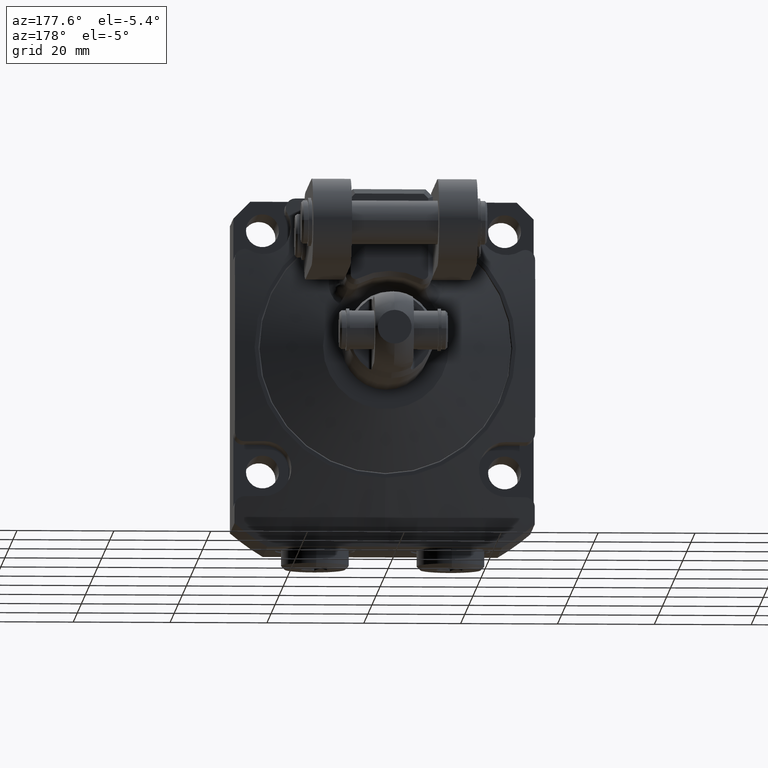
[diagram: clean part render]
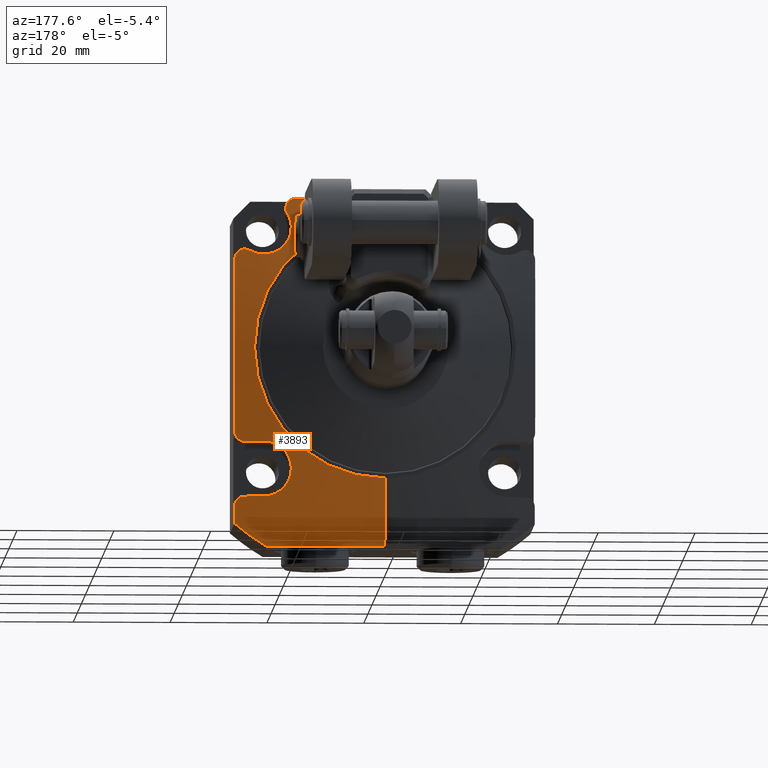
[diagram: same view with one face highlighted and labeled with its STEP entity id]
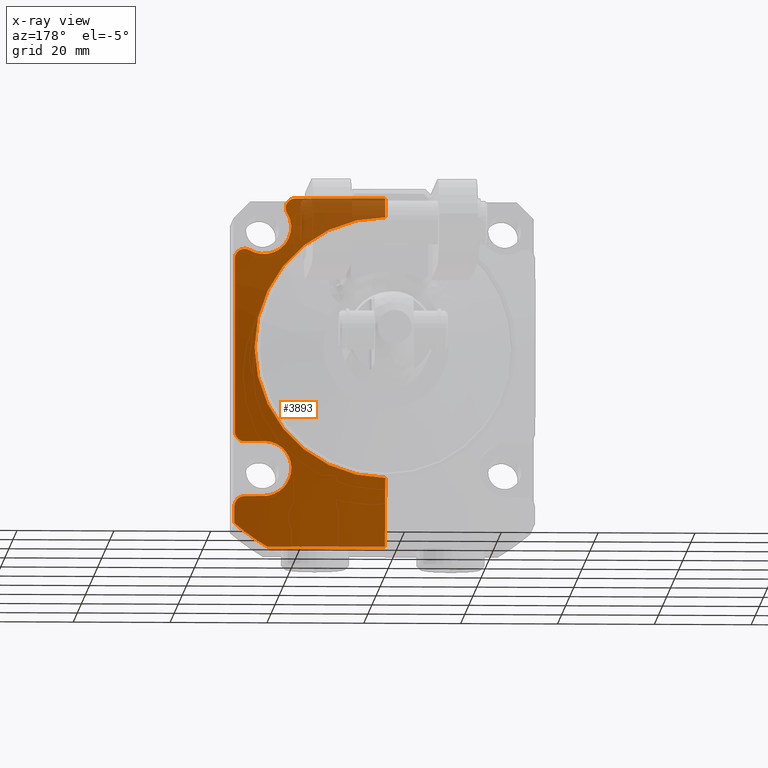
[diagram: x-ray of the same camera — body ghosted, the highlighted face saturated]
A machine part, auxiliary view. The second image highlights one B-rep face of the part: STEP entity #3893.
The next image is the same camera in x-ray: the body ghosted, the highlighted face saturated — about 13% of this face is hidden behind the body in this view.
In plain terms, the highlighted conical surface has half-angle 80 deg.
Its self-contained STEP definition (entity closure, byte-faithful):
#831=CARTESIAN_POINT('',(1.850841891370E1,2.445456592684E1,3.1E1));
#832=CARTESIAN_POINT('',(1.871039577311E1,2.443630915735E1,3.1E1));
#833=CARTESIAN_POINT('',(1.911386075460E1,2.440872745197E1,3.093830486984E1));
#834=CARTESIAN_POINT('',(1.966266443249E1,2.439714233957E1,3.067064308171E1));
#835=CARTESIAN_POINT('',(2.010739066395E1,2.441609899486E1,3.025173953668E1));
#836=CARTESIAN_POINT('',(2.040754255891E1,2.446422264453E1,2.971912493443E1));
#837=CARTESIAN_POINT('',(2.053592686771E1,2.453796414639E1,2.911968353513E1));
#838=CARTESIAN_POINT('',(2.047863528475E1,2.463197855944E1,2.850545486873E1));
#839=CARTESIAN_POINT('',(2.031852021656E1,2.470285760369E1,2.812510484548E1));
#840=CARTESIAN_POINT('',(2.021112870683E1,2.473885607040E1,2.795081967213E1));
#845=CARTESIAN_POINT('',(1.850841891370E1,2.445456592684E1,3.1E1));
#846=CARTESIAN_POINT('',(1.725879002443E1,2.456752038433E1,3.1E1));
#847=CARTESIAN_POINT('',(1.477391703596E1,2.477515249624E1,3.1E1));
#848=CARTESIAN_POINT('',(1.111689126958E1,2.502440335563E1,3.1E1));
#849=CARTESIAN_POINT('',(7.446724091491E0,2.521108365036E1,3.1E1));
#850=CARTESIAN_POINT('',(3.739365260766E0,2.532795972018E1,3.1E1));
#851=CARTESIAN_POINT('',(1.249828680672E0,2.535469207717E1,3.1E1));
#852=CARTESIAN_POINT('',(0.E0,2.535469207717E1,3.1E1));
#857=CARTESIAN_POINT('',(0.E0,2.359142227008E1,-4.1E1));
#858=CARTESIAN_POINT('',(2.038003860348E0,2.359142227008E1,-4.1E1));
#859=CARTESIAN_POINT('',(6.096191495631E0,2.353762518246E1,-4.1E1));
#860=CARTESIAN_POINT('',(1.213653740784E1,2.330406650582E1,-4.1E1));
#861=CARTESIAN_POINT('',(1.811038768317E1,2.293746612058E1,-4.1E1));
#862=CARTESIAN_POINT('',(2.218304326774E1,2.260698277768E1,-4.1E1));
#863=CARTESIAN_POINT('',(2.423098481284E1,2.242325602289E1,-4.1E1));
#868=CARTESIAN_POINT('',(3.1E1,2.242325602289E1,-3.615439980141E1));
#869=CARTESIAN_POINT('',(3.1E1,2.250453751238E1,-3.554717889611E1));
#870=CARTESIAN_POINT('',(3.1E1,2.266282307784E1,-3.435172313675E1));
#871=CARTESIAN_POINT('',(3.1E1,2.281258562931E1,-3.319424387914E1));
#872=CARTESIAN_POINT('',(3.1E1,2.288534907608E1,-3.2625E1));
#877=CARTESIAN_POINT('',(2.9E1,2.338390360797E1,-3.0625E1));
#878=CARTESIAN_POINT('',(2.917380263984E1,2.336283195941E1,-3.0625E1));
#879=CARTESIAN_POINT('',(2.952181420712E1,2.331461352062E1,-3.067050291089E1));
#880=CARTESIAN_POINT('',(3.001088795163E1,2.322901533312E1,-3.087251948197E1));
#881=CARTESIAN_POINT('',(3.043137960101E1,2.313650620517E1,-3.119523607486E1));
#882=CARTESIAN_POINT('',(3.075315374157E1,2.304384144228E1,-3.161553572599E1));
#883=CARTESIAN_POINT('',(3.095440614732E1,2.295741815800E1,-3.210319178469E1));
#884=CARTESIAN_POINT('',(3.1E1,2.290757524769E1,-3.245111994472E1));
#885=CARTESIAN_POINT('',(3.1E1,2.288534907608E1,-3.2625E1));
#890=CARTESIAN_POINT('',(2.5E1,2.385002139185E1,-3.0625E1));
#891=CARTESIAN_POINT('',(2.564467990155E1,2.377813633548E1,-3.0625E1));
#892=CARTESIAN_POINT('',(2.695602758216E1,2.362857495948E1,-3.0625E1));
#893=CARTESIAN_POINT('',(2.831134701697E1,2.346739516857E1,-3.0625E1));
#894=CARTESIAN_POINT('',(2.9E1,2.338390360797E1,-3.0625E1));
#899=CARTESIAN_POINT('',(2.5E1,2.524379081318E1,-1.9375E1));
#900=CARTESIAN_POINT('',(2.457804819072E1,2.530259886962E1,-1.9375E1));
#901=CARTESIAN_POINT('',(2.373672543839E1,2.540843921523E1,-1.947037187997E1));
#902=CARTESIAN_POINT('',(2.254448233433E1,2.552130714300E1,-1.988734140172E1));
#903=CARTESIAN_POINT('',(2.147642679086E1,2.558044273E1,-2.055589724112E1));
#904=CARTESIAN_POINT('',(2.058548308921E1,2.558147953121E1,-2.143988295217E1));
#905=CARTESIAN_POINT('',(1.991047732343E1,2.552480608995E1,-2.249758280086E1));
#906=CARTESIAN_POINT('',(1.948333409602E1,2.541434866069E1,-2.368279791641E1));
#907=CARTESIAN_POINT('',(1.932799553318E1,2.525819578647E1,-2.493717221032E1));
#908=CARTESIAN_POINT('',(1.945663942139E1,2.506601514063E1,-2.620519167822E1));
#909=CARTESIAN_POINT('',(1.986645264681E1,2.485108770003E1,-2.741481827890E1));
#910=CARTESIAN_POINT('',(2.054023695825E1,2.462538487419E1,-2.850686126599E1));
#911=CARTESIAN_POINT('',(2.144206419370E1,2.440192720312E1,-2.941902126024E1));
#912=CARTESIAN_POINT('',(2.252586673028E1,2.419122091510E1,-3.010541999840E1));
#913=CARTESIAN_POINT('',(2.373421363678E1,2.400270847255E1,-3.052995210468E1));
#914=CARTESIAN_POINT('',(2.457852149201E1,2.389701836853E1,-3.0625E1));
#915=CARTESIAN_POINT('',(2.5E1,2.385002139185E1,-3.0625E1));
#920=CARTESIAN_POINT('',(2.5E1,2.524379081318E1,-1.9375E1));
#921=CARTESIAN_POINT('',(2.562915426792E1,2.515610463935E1,-1.9375E1));
#922=CARTESIAN_POINT('',(2.692498129682E1,2.497301561491E1,-1.9375E1));
#923=CARTESIAN_POINT('',(2.829582594066E1,2.477435195211E1,-1.9375E1));
#924=CARTESIAN_POINT('',(2.9E1,2.467110903687E1,-1.9375E1));
#929=CARTESIAN_POINT('',(3.1E1,2.455466615994E1,-1.7375E1));
#930=CARTESIAN_POINT('',(3.1E1,2.453961146390E1,-1.754962695318E1));
#931=CARTESIAN_POINT('',(3.095400697112E1,2.451625128695E1,-1.789856836235E1));
#932=CARTESIAN_POINT('',(3.075226879584E1,2.450339021344E1,-1.838571475493E1));
#933=CARTESIAN_POINT('',(3.043205142487E1,2.451334872434E1,-1.880367043762E1));
#934=CARTESIAN_POINT('',(3.001455282745E1,2.454554334244E1,-1.912512771352E1));
#935=CARTESIAN_POINT('',(2.952660162631E1,2.459832432128E1,-1.932836864856E1));
#936=CARTESIAN_POINT('',(2.917584833702E1,2.464532692417E1,-1.9375E1));
#937=CARTESIAN_POINT('',(2.9E1,2.467110903687E1,-1.9375E1));
#942=CARTESIAN_POINT('',(3.1E1,2.455466615994E1,-1.7375E1));
#943=CARTESIAN_POINT('',(3.1E1,2.467213565159E1,-1.601241258106E1));
#944=CARTESIAN_POINT('',(3.1E1,2.488385083456E1,-1.331036284428E1));
#945=CARTESIAN_POINT('',(3.1E1,2.512359797590E1,-9.365549300248E0));
#946=CARTESIAN_POINT('',(3.1E1,2.528638502803E1,-5.410299500947E0));
#947=CARTESIAN_POINT('',(3.1E1,2.536391294157E1,-1.434089714093E0));
#948=CARTESIAN_POINT('',(3.1E1,2.535112319463E1,2.552265132070E0));
#949=CARTESIAN_POINT('',(3.1E1,2.524904375857E1,6.520326427236E0));
#950=CARTESIAN_POINT('',(3.1E1,2.506398451803E1,1.046784819692E1));
#951=CARTESIAN_POINT('',(3.1E1,2.480351880333E1,1.442107815153E1));
#952=CARTESIAN_POINT('',(3.1E1,2.457854952217E1,1.713677333224E1));
#953=CARTESIAN_POINT('',(3.1E1,2.445456592684E1,1.850841891370E1));
#958=CARTESIAN_POINT('',(2.795081967213E1,2.473885607040E1,2.021112870683E1));
#959=CARTESIAN_POINT('',(2.812510484548E1,2.470285760369E1,2.031852021656E1));
#960=CARTESIAN_POINT('',(2.850545486873E1,2.463197855944E1,2.047863528475E1));
#961=CARTESIAN_POINT('',(2.911968353513E1,2.453796414639E1,2.053592686771E1));
#962=CARTESIAN_POINT('',(2.971912493443E1,2.446422264453E1,2.040754255891E1));
#963=CARTESIAN_POINT('',(3.025173953668E1,2.441609899486E1,2.010739066395E1));
#964=CARTESIAN_POINT('',(3.067064308171E1,2.439714233957E1,1.966266443249E1));
#965=CARTESIAN_POINT('',(3.093830486984E1,2.440872745197E1,1.911386075460E1));
#966=CARTESIAN_POINT('',(3.1E1,2.443630915735E1,1.871039577311E1));
#967=CARTESIAN_POINT('',(3.1E1,2.445456592684E1,1.850841891370E1));
#972=CARTESIAN_POINT('',(2.021112870683E1,2.473885607040E1,2.795081967213E1));
#973=CARTESIAN_POINT('',(1.998893605867E1,2.481333676880E1,2.759022427406E1));
#974=CARTESIAN_POINT('',(1.962736257643E1,2.496072791133E1,2.682029086905E1));
#975=CARTESIAN_POINT('',(1.935686881190E1,2.516530962807E1,2.557729145682E1));
#976=CARTESIAN_POINT('',(1.937046990755E1,2.534126550612E1,2.430602566874E1));
#977=CARTESIAN_POINT('',(1.966352692945E1,2.547567444765E1,2.307975351385E1));
#978=CARTESIAN_POINT('',(2.021683317848E1,2.555996855217E1,2.195329173444E1));
#979=CARTESIAN_POINT('',(2.100029590419E1,2.558818053382E1,2.098009977951E1));
#980=CARTESIAN_POINT('',(2.197591362570E1,2.555869323986E1,2.020281543951E1));
#981=CARTESIAN_POINT('',(2.310026218100E1,2.547368511594E1,1.965668344316E1));
#982=CARTESIAN_POINT('',(2.432054158136E1,2.533938347011E1,1.936925454286E1));
#983=CARTESIAN_POINT('',(2.558479874711E1,2.516411739194E1,1.935810171688E1));
#984=CARTESIAN_POINT('',(2.682267717748E1,2.496027094675E1,1.962848165675E1));
#985=CARTESIAN_POINT('',(2.759077838279E1,2.481322231807E1,1.998927749089E1));
#986=CARTESIAN_POINT('',(2.795081967213E1,2.473885607040E1,2.021112870683E1));
#1123=CARTESIAN_POINT('',(0.E0,2.242325602289E1,0.E0));
#1124=DIRECTION('',(0.E0,-1.E0,0.E0));
#1125=DIRECTION('',(5.087870826843E-1,0.E0,-8.608923884514E-1));
#1126=AXIS2_PLACEMENT_3D('',#1123,#1124,#1125);
#1192=CARTESIAN_POINT('',(0.E0,2.359142227008E1,-4.1E1));
#1197=DIRECTION('',(0.E0,-1.736481776669E-1,-9.848077530122E-1));
#1198=VECTOR('',#1197,1.421597256640E1);
#1199=CARTESIAN_POINT('',(0.E0,2.606E1,-2.7E1));
#1200=LINE('',#1199,#1198);
#1204=DIRECTION('',(0.E0,-1.736481776669E-1,9.848077530122E-1));
#1205=VECTOR('',#1204,4.061706447543E0);
#1206=CARTESIAN_POINT('',(0.E0,2.606E1,2.7E1));
#1207=LINE('',#1206,#1205);
#1398=CARTESIAN_POINT('',(0.E0,2.606E1,0.E0));
#1399=DIRECTION('',(0.E0,-1.E0,0.E0));
#1400=DIRECTION('',(0.E0,0.E0,-1.E0));
#1401=AXIS2_PLACEMENT_3D('',#1398,#1399,#1400);
#2850=CARTESIAN_POINT('',(2.423098481284E1,2.242325602289E1,-4.1E1));
#2851=VERTEX_POINT('',#2850);
#2852=CARTESIAN_POINT('',(3.1E1,2.242325602289E1,-3.615439980141E1));
#2854=VERTEX_POINT('',#2852);
#2924=CARTESIAN_POINT('',(0.E0,2.606E1,-2.7E1));
#2925=CARTESIAN_POINT('',(0.E0,2.606E1,2.7E1));
#2926=VERTEX_POINT('',#2924);
#2927=VERTEX_POINT('',#2925);
#2928=VERTEX_POINT('',#1192);
#2929=CARTESIAN_POINT('',(0.E0,2.535469207717E1,3.1E1));
#2930=VERTEX_POINT('',#2929);
#2978=CARTESIAN_POINT('',(2.5E1,2.524379081318E1,-1.9375E1));
#2979=VERTEX_POINT('',#2978);
#2980=CARTESIAN_POINT('',(2.5E1,2.385002139185E1,-3.0625E1));
#2981=VERTEX_POINT('',#2980);
#2990=VERTEX_POINT('',#831);
#2991=VERTEX_POINT('',#840);
#2996=CARTESIAN_POINT('',(2.795081967213E1,2.473885607040E1,2.021112870683E1));
#2998=VERTEX_POINT('',#2996);
#3000=VERTEX_POINT('',#967);
#3003=CARTESIAN_POINT('',(2.9E1,2.338390360797E1,-3.0625E1));
#3005=VERTEX_POINT('',#3003);
#3007=CARTESIAN_POINT('',(3.1E1,2.288534907608E1,-3.2625E1));
#3009=VERTEX_POINT('',#3007);
#3012=CARTESIAN_POINT('',(2.9E1,2.467110903687E1,-1.9375E1));
#3014=VERTEX_POINT('',#3012);
#3016=CARTESIAN_POINT('',(3.1E1,2.455466615994E1,-1.7375E1));
#3018=VERTEX_POINT('',#3016);
#3857=CARTESIAN_POINT('',(0.E0,2.424162801144E1,0.E0));
#3858=DIRECTION('',(0.E0,-1.E0,0.E0));
#3859=DIRECTION('',(0.E0,0.E0,1.E0));
#3860=AXIS2_PLACEMENT_3D('',#3857,#3858,#3859);
#3861=CONICAL_SURFACE('',#3860,3.73125E1,8.E1);
#3863=ORIENTED_EDGE('',*,*,#3862,.F.);
#3864=ORIENTED_EDGE('',*,*,#3703,.T.);
#3866=ORIENTED_EDGE('',*,*,#3865,.F.);
#3868=ORIENTED_EDGE('',*,*,#3867,.F.);
#3870=ORIENTED_EDGE('',*,*,#3869,.T.);
#3872=ORIENTED_EDGE('',*,*,#3871,.T.);
#3874=ORIENTED_EDGE('',*,*,#3873,.T.);
#3876=ORIENTED_EDGE('',*,*,#3875,.T.);
#3877=ORIENTED_EDGE('',*,*,#3849,.F.);
#3878=ORIENTED_EDGE('',*,*,#3838,.F.);
#3880=ORIENTED_EDGE('',*,*,#3879,.F.);
#3882=ORIENTED_EDGE('',*,*,#3881,.T.);
#3884=ORIENTED_EDGE('',*,*,#3883,.F.);
#3886=ORIENTED_EDGE('',*,*,#3885,.T.);
#3888=ORIENTED_EDGE('',*,*,#3887,.F.);
#3890=ORIENTED_EDGE('',*,*,#3889,.F.);
#3891=EDGE_LOOP('',(#3863,#3864,#3866,#3868,#3870,#3872,#3874,#3876,#3877,#3878,
#3880,#3882,#3884,#3886,#3888,#3890));
#3892=FACE_OUTER_BOUND('',#3891,.F.);
#3893=ADVANCED_FACE('',(#3892),#3861,.T.);
#841=B_SPLINE_CURVE_WITH_KNOTS('',3,(#831,#832,#833,#834,#835,#836,#837,#838,
#839,#840),.UNSPECIFIED.,.F.,.F.,(4,1,1,1,1,1,1,4),(0.E0,1.428571428571E-1,
2.857142857143E-1,4.285714285714E-1,5.714285714286E-1,7.142857142857E-1,
8.571428571429E-1,1.E0),.UNSPECIFIED.);
#853=B_SPLINE_CURVE_WITH_KNOTS('',3,(#845,#846,#847,#848,#849,#850,#851,#852),
.UNSPECIFIED.,.F.,.F.,(4,1,1,1,1,4),(0.E0,2.E-1,4.E-1,6.E-1,8.E-1,1.E0),
.UNSPECIFIED.);
#864=B_SPLINE_CURVE_WITH_KNOTS('',3,(#857,#858,#859,#860,#861,#862,#863),
.UNSPECIFIED.,.F.,.F.,(4,1,1,1,4),(0.E0,2.5E-1,5.E-1,7.5E-1,1.E0),
.UNSPECIFIED.);
#873=B_SPLINE_CURVE_WITH_KNOTS('',3,(#868,#869,#870,#871,#872),.UNSPECIFIED.,
.F.,.F.,(4,1,4),(0.E0,5.E-1,1.E0),.UNSPECIFIED.);
#886=B_SPLINE_CURVE_WITH_KNOTS('',3,(#877,#878,#879,#880,#881,#882,#883,#884,
#885),.UNSPECIFIED.,.F.,.F.,(4,1,1,1,1,1,4),(0.E0,1.666666666667E-1,
3.333333333333E-1,5.E-1,6.666666666667E-1,8.333333333333E-1,1.E0),
.UNSPECIFIED.);
#895=B_SPLINE_CURVE_WITH_KNOTS('',3,(#890,#891,#892,#893,#894),.UNSPECIFIED.,
.F.,.F.,(4,1,4),(0.E0,5.E-1,1.E0),.UNSPECIFIED.);
#916=B_SPLINE_CURVE_WITH_KNOTS('',3,(#899,#900,#901,#902,#903,#904,#905,#906,
#907,#908,#909,#910,#911,#912,#913,#914,#915),.UNSPECIFIED.,.F.,.F.,(4,1,1,1,1,
1,1,1,1,1,1,1,1,1,4),(0.E0,7.142857142857E-2,1.428571428571E-1,
2.142857142857E-1,2.857142857143E-1,3.571428571429E-1,4.285714285714E-1,5.E-1,
5.714285714286E-1,6.428571428571E-1,7.142857142857E-1,7.857142857143E-1,
8.571428571429E-1,9.285714285714E-1,1.E0),.UNSPECIFIED.);
#925=B_SPLINE_CURVE_WITH_KNOTS('',3,(#920,#921,#922,#923,#924),.UNSPECIFIED.,
.F.,.F.,(4,1,4),(0.E0,5.E-1,1.E0),.UNSPECIFIED.);
#938=B_SPLINE_CURVE_WITH_KNOTS('',3,(#929,#930,#931,#932,#933,#934,#935,#936,
#937),.UNSPECIFIED.,.F.,.F.,(4,1,1,1,1,1,4),(0.E0,1.666666666667E-1,
3.333333333333E-1,5.E-1,6.666666666667E-1,8.333333333333E-1,1.E0),
.UNSPECIFIED.);
#954=B_SPLINE_CURVE_WITH_KNOTS('',3,(#942,#943,#944,#945,#946,#947,#948,#949,
#950,#951,#952,#953),.UNSPECIFIED.,.F.,.F.,(4,1,1,1,1,1,1,1,1,4),(0.E0,
1.111111111111E-1,2.222222222222E-1,3.333333333333E-1,4.444444444444E-1,
5.555555555556E-1,6.666666666667E-1,7.777777777778E-1,8.888888888889E-1,1.E0),
.UNSPECIFIED.);
#968=B_SPLINE_CURVE_WITH_KNOTS('',3,(#958,#959,#960,#961,#962,#963,#964,#965,
#966,#967),.UNSPECIFIED.,.F.,.F.,(4,1,1,1,1,1,1,4),(0.E0,1.428571428571E-1,
2.857142857143E-1,4.285714285714E-1,5.714285714286E-1,7.142857142857E-1,
8.571428571429E-1,1.E0),.UNSPECIFIED.);
#987=B_SPLINE_CURVE_WITH_KNOTS('',3,(#972,#973,#974,#975,#976,#977,#978,#979,
#980,#981,#982,#983,#984,#985,#986),.UNSPECIFIED.,.F.,.F.,(4,1,1,1,1,1,1,1,1,1,
1,1,4),(0.E0,8.333333333333E-2,1.666666666667E-1,2.5E-1,3.333333333333E-1,
4.166666666667E-1,5.E-1,5.833333333333E-1,6.666666666667E-1,7.5E-1,
8.333333333333E-1,9.166666666667E-1,1.E0),.UNSPECIFIED.);
#1127=CIRCLE('',#1126,4.7625E1);
#1402=CIRCLE('',#1401,2.7E1);
#3703=EDGE_CURVE('',#2990,#2930,#853,.T.);
#3838=EDGE_CURVE('',#2981,#3005,#895,.T.);
#3849=EDGE_CURVE('',#3005,#3009,#886,.T.);
#3862=EDGE_CURVE('',#2990,#2991,#841,.T.);
#3865=EDGE_CURVE('',#2927,#2930,#1207,.T.);
#3867=EDGE_CURVE('',#2926,#2927,#1402,.T.);
#3869=EDGE_CURVE('',#2926,#2928,#1200,.T.);
#3871=EDGE_CURVE('',#2928,#2851,#864,.T.);
#3873=EDGE_CURVE('',#2851,#2854,#1127,.T.);
#3875=EDGE_CURVE('',#2854,#3009,#873,.T.);
#3879=EDGE_CURVE('',#2979,#2981,#916,.T.);
#3881=EDGE_CURVE('',#2979,#3014,#925,.T.);
#3883=EDGE_CURVE('',#3018,#3014,#938,.T.);
#3885=EDGE_CURVE('',#3018,#3000,#954,.T.);
#3887=EDGE_CURVE('',#2998,#3000,#968,.T.);
#3889=EDGE_CURVE('',#2991,#2998,#987,.T.);